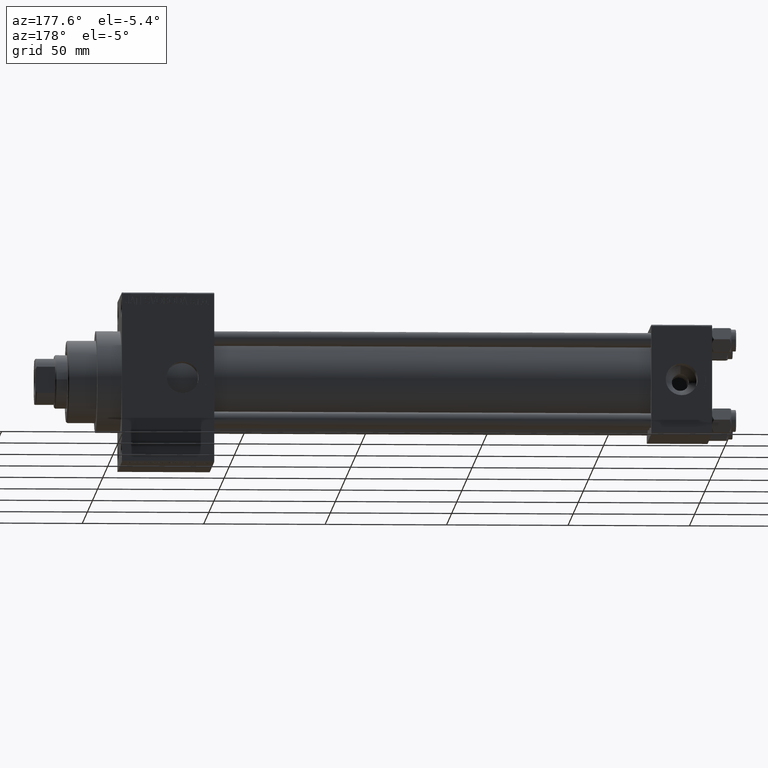
[diagram: clean part render]
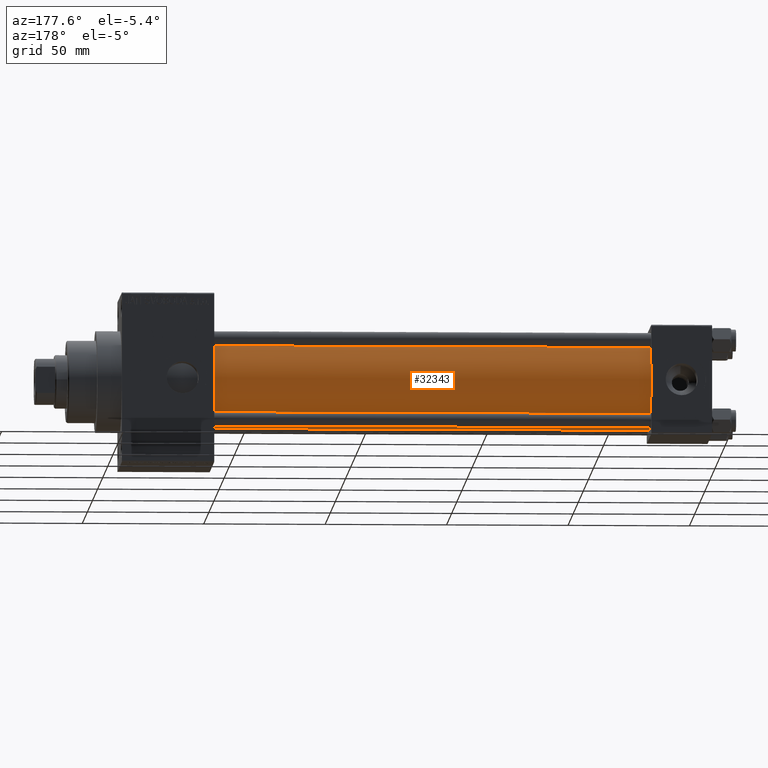
[diagram: same view with one face highlighted and labeled with its STEP entity id]
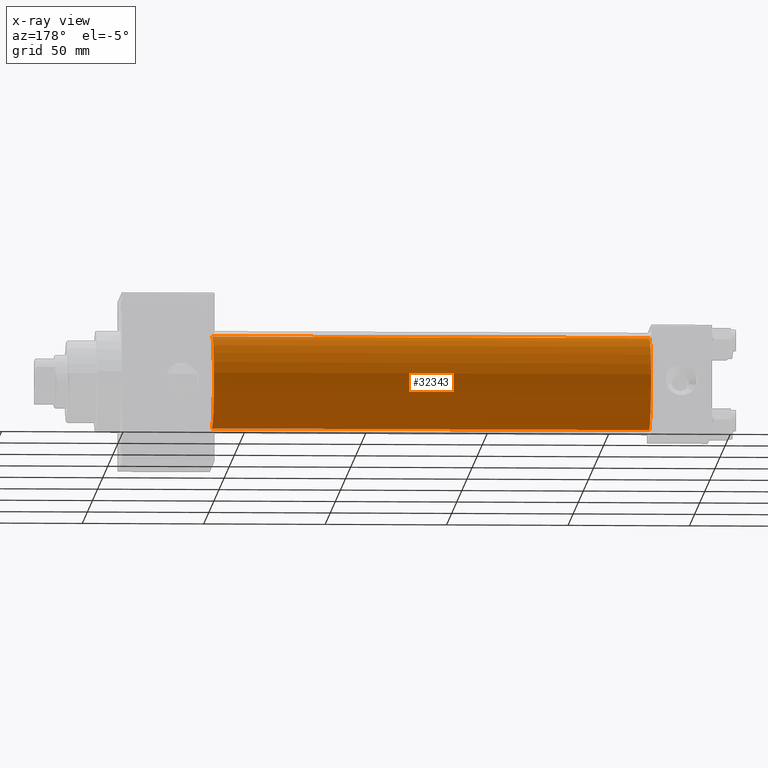
[diagram: x-ray of the same camera — body ghosted, the highlighted face saturated]
A machine part, auxiliary view. The second image highlights one B-rep face of the part: STEP entity #32343.
The next image is the same camera in x-ray: the body ghosted, the highlighted face saturated — about 0% of this face is hidden behind the body in this view.
In plain terms, the highlighted cylindrical surface (partial cylindrical patch) has radius 19 mm, axis along (-1, -0, -0).
Its self-contained STEP definition (entity closure, byte-faithful):
#938 = CIRCLE ( 'NONE', #14361, 19.00000000000000000 ) ;
#969 = CARTESIAN_POINT ( 'NONE',  ( 24.99999999999999289, -2.602085213965210642E-15, 19.00000000000000000 ) ) ;
#2215 = CARTESIAN_POINT ( 'NONE',  ( 205.0000000000000000, -2.752562955852400657E-16, -19.00000000000000000 ) ) ;
#3065 = DIRECTION ( 'NONE',  ( -1.000000000000000000, -0.000000000000000000, -0.000000000000000000 ) ) ;
#3552 = DIRECTION ( 'NONE',  ( 1.000000000000000000, -0.000000000000000000, 0.000000000000000000 ) ) ;
#7286 = AXIS2_PLACEMENT_3D ( 'NONE', #35877, #24706, #9563 ) ;
#8828 = FACE_OUTER_BOUND ( 'NONE', #24451, .T. ) ;
#9377 = EDGE_CURVE ( 'NONE', #31331, #40431, #33956, .T. ) ;
#9563 = DIRECTION ( 'NONE',  ( 0.000000000000000000, 0.000000000000000000, 1.000000000000000000 ) ) ;
#9573 = CARTESIAN_POINT ( 'NONE',  ( 24.99999999999999289, -2.752562955852400657E-16, -19.00000000000000000 ) ) ;
#10121 = ORIENTED_EDGE ( 'NONE', *, *, #16428, .F. ) ;
#10210 = EDGE_CURVE ( 'NONE', #16681, #40431, #48239, .T. ) ;
#13394 = VECTOR ( 'NONE', #3065, 1000.000000000000000 ) ;
#13858 = ORIENTED_EDGE ( 'NONE', *, *, #9377, .T. ) ;
#14361 = AXIS2_PLACEMENT_3D ( 'NONE', #47369, #32464, #20806 ) ;
#16428 = EDGE_CURVE ( 'NONE', #44321, #16681, #938, .T. ) ;
#16681 = VERTEX_POINT ( 'NONE', #44255 ) ;
#16884 = EDGE_CURVE ( 'NONE', #44321, #31331, #28085, .T. ) ;
#18900 = AXIS2_PLACEMENT_3D ( 'NONE', #41276, #3552, #45743 ) ;
#20806 = DIRECTION ( 'NONE',  ( 0.000000000000000000, 0.000000000000000000, -1.000000000000000000 ) ) ;
#22462 = ORIENTED_EDGE ( 'NONE', *, *, #16884, .T. ) ;
#23981 = CYLINDRICAL_SURFACE ( 'NONE', #7286, 19.00000000000000000 ) ;
#24451 = EDGE_LOOP ( 'NONE', ( #10121, #22462, #13858, #37982 ) ) ;
#24706 = DIRECTION ( 'NONE',  ( -1.000000000000000000, -0.000000000000000000, -0.000000000000000000 ) ) ;
#24847 = DIRECTION ( 'NONE',  ( -1.000000000000000000, -0.000000000000000000, -0.000000000000000000 ) ) ;
#28085 = LINE ( 'NONE', #43715, #42963 ) ;
#31331 = VERTEX_POINT ( 'NONE', #9573 ) ;
#32343 = ADVANCED_FACE ( 'NONE', ( #8828 ), #23981, .T. ) ;
#32464 = DIRECTION ( 'NONE',  ( 1.000000000000000000, 0.000000000000000000, 0.000000000000000000 ) ) ;
#33956 = CIRCLE ( 'NONE', #18900, 19.00000000000000000 ) ;
#35877 = CARTESIAN_POINT ( 'NONE',  ( 205.0000000000000000, -2.602085213965210642E-15, 0.000000000000000000 ) ) ;
#37982 = ORIENTED_EDGE ( 'NONE', *, *, #10210, .F. ) ;
#40431 = VERTEX_POINT ( 'NONE', #969 ) ;
#41276 = CARTESIAN_POINT ( 'NONE',  ( 24.99999999999999289, -2.602085213965210642E-15, 0.000000000000000000 ) ) ;
#42963 = VECTOR ( 'NONE', #24847, 1000.000000000000000 ) ;
#43715 = CARTESIAN_POINT ( 'NONE',  ( 205.0000000000000000, -2.752562955852400657E-16, -19.00000000000000000 ) ) ;
#44039 = CARTESIAN_POINT ( 'NONE',  ( 205.0000000000000000, -2.602085213965210642E-15, 19.00000000000000000 ) ) ;
#44255 = CARTESIAN_POINT ( 'NONE',  ( 205.0000000000000000, -2.602085213965210642E-15, 19.00000000000000000 ) ) ;
#44321 = VERTEX_POINT ( 'NONE', #2215 ) ;
#45743 = DIRECTION ( 'NONE',  ( 0.000000000000000000, 0.000000000000000000, 1.000000000000000000 ) ) ;
#47369 = CARTESIAN_POINT ( 'NONE',  ( 205.0000000000000000, -2.602085213965210642E-15, 0.000000000000000000 ) ) ;
#48239 = LINE ( 'NONE', #44039, #13394 ) ;